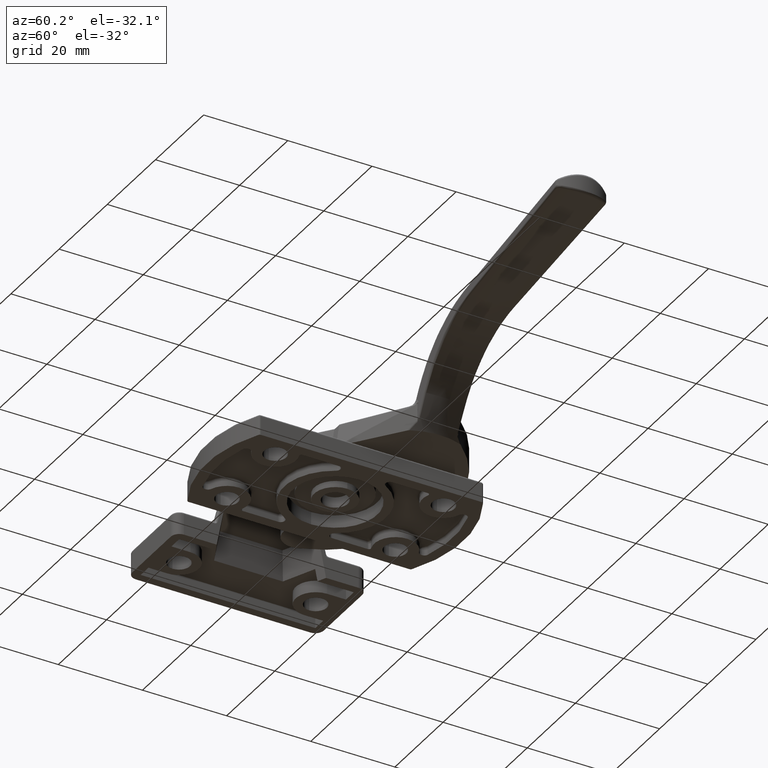
[diagram: clean part render]
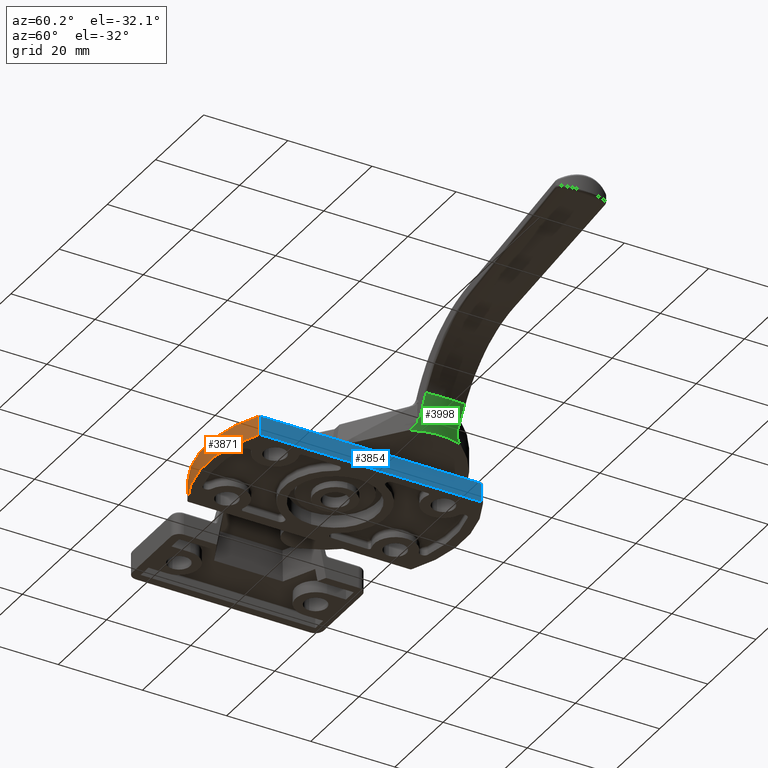
[diagram: same view with three faces highlighted in distinct colors, each labeled with its STEP entity id]
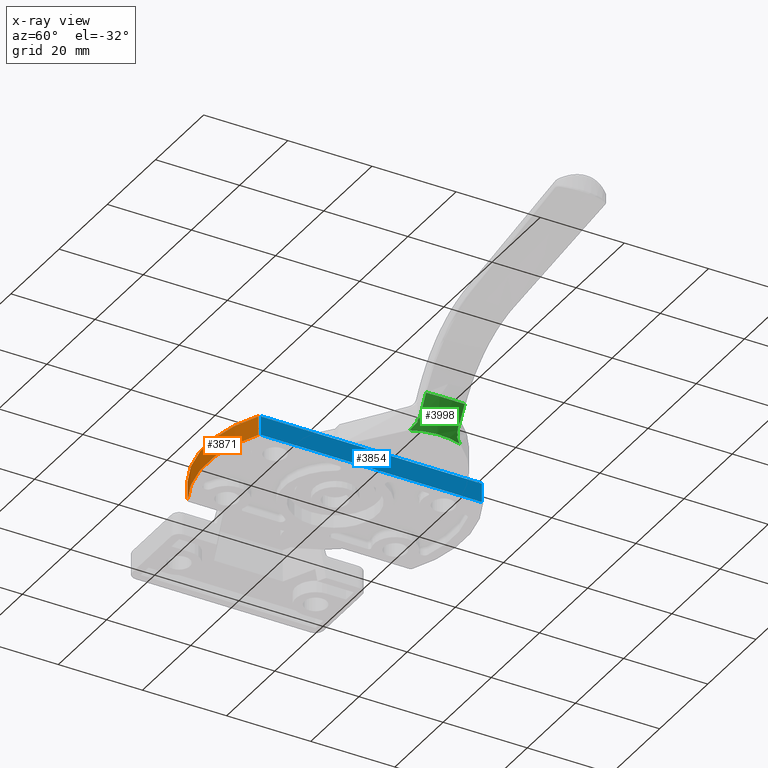
[diagram: x-ray of the same camera — body ghosted, the three highlighted faces saturated]
A machine part, auxiliary view with three faces highlighted in distinct colors.
The next image is the same camera in x-ray (body ghosted, the three faces saturated) — at least one of them is partly hidden behind the body in this view.
Their STEP definitions:

[orange] entity #3871 — the highlighted cylindrical surface (partial cylindrical patch) has radius 30.5 mm, axis along (0, 0, 1).
#299=LINE('',#6308,#488);
#302=LINE('',#6322,#491);
#488=VECTOR('',#4900,4.5);
#491=VECTOR('',#4915,4.5);
#662=CYLINDRICAL_SURFACE('',#4254,30.5);
#818=FACE_OUTER_BOUND('',#1103,.T.);
#1103=EDGE_LOOP('',(#2966,#2967,#2968,#2969));
#1391=CIRCLE('',#4212,30.5);
#1394=CIRCLE('',#4219,30.5);
#1740=VERTEX_POINT('',#6301);
#1742=VERTEX_POINT('',#6306);
#1743=VERTEX_POINT('',#6311);
#1746=VERTEX_POINT('',#6318);
#2167=EDGE_CURVE('',#1742,#1740,#299,.T.);
#2174=EDGE_CURVE('',#1743,#1746,#302,.T.);
#2177=EDGE_CURVE('',#1740,#1743,#1391,.T.);
#2183=EDGE_CURVE('',#1746,#1742,#1394,.T.);
#2966=ORIENTED_EDGE('',*,*,#2167,.F.);
#2967=ORIENTED_EDGE('',*,*,#2183,.F.);
#2968=ORIENTED_EDGE('',*,*,#2174,.F.);
#2969=ORIENTED_EDGE('',*,*,#2177,.F.);
#3871=ADVANCED_FACE('',(#818),#662,.T.);
#4212=AXIS2_PLACEMENT_3D('',#6327,#4922,#4923);
#4219=AXIS2_PLACEMENT_3D('',#6337,#4939,#4940);
#4254=AXIS2_PLACEMENT_3D('',#6392,#5010,#5011);
#4900=DIRECTION('',(0.,0.,1.));
#4915=DIRECTION('',(0.,0.,-1.));
#4922=DIRECTION('center_axis',(0.,0.,1.));
#4923=DIRECTION('ref_axis',(-2.18404529434457E-16,-1.,0.));
#4939=DIRECTION('center_axis',(0.,0.,-1.));
#4940=DIRECTION('ref_axis',(0.491803278688525,0.870706342615705,0.));
#5010=DIRECTION('center_axis',(0.,0.,1.));
#5011=DIRECTION('ref_axis',(0.491803278688525,0.870706342615705,0.));
#6301=CARTESIAN_POINT('',(-14.7416666666667,-26.7008101728934,4.5));
#6306=CARTESIAN_POINT('',(-14.7416666666667,-26.7008101728934,0.));
#6308=CARTESIAN_POINT('',(-14.7416666666667,-26.7008101728934,0.));
#6311=CARTESIAN_POINT('',(14.7416666666667,-26.7008101728934,4.5));
#6318=CARTESIAN_POINT('',(14.7416666666667,-26.7008101728934,0.));
#6322=CARTESIAN_POINT('',(14.7416666666667,-26.7008101728934,0.));
#6327=CARTESIAN_POINT('Origin',(0.,0.,4.5));
#6337=CARTESIAN_POINT('Origin',(0.,0.,0.));
#6392=CARTESIAN_POINT('Origin',(0.,0.,0.));

[blue] entity #3854 — the highlighted planar face has unit normal (1, 0, 0).
#172=PLANE('',#4217);
#298=LINE('',#6293,#487);
#301=LINE('',#6321,#490);
#303=LINE('',#6324,#492);
#307=LINE('',#6335,#496);
#487=VECTOR('',#4881,4.5);
#490=VECTOR('',#4914,4.5);
#492=VECTOR('',#4918,52.5261839466756);
#496=VECTOR('',#4936,52.5261839466756);
#801=FACE_OUTER_BOUND('',#1060,.T.);
#1060=EDGE_LOOP('',(#2880,#2881,#2882,#2883));
#1733=VERTEX_POINT('',#6282);
#1736=VERTEX_POINT('',#6289);
#1745=VERTEX_POINT('',#6314);
#1747=VERTEX_POINT('',#6319);
#2160=EDGE_CURVE('',#1733,#1736,#298,.T.);
#2173=EDGE_CURVE('',#1747,#1745,#301,.T.);
#2175=EDGE_CURVE('',#1745,#1733,#303,.T.);
#2182=EDGE_CURVE('',#1736,#1747,#307,.T.);
#2880=ORIENTED_EDGE('',*,*,#2160,.F.);
#2881=ORIENTED_EDGE('',*,*,#2175,.F.);
#2882=ORIENTED_EDGE('',*,*,#2173,.F.);
#2883=ORIENTED_EDGE('',*,*,#2182,.F.);
#3854=ADVANCED_FACE('',(#801),#172,.T.);
#4217=AXIS2_PLACEMENT_3D('',#6334,#4934,#4935);
#4881=DIRECTION('',(0.,0.,-1.));
#4914=DIRECTION('',(0.,0.,1.));
#4918=DIRECTION('',(-4.1806006369944E-17,1.,0.));
#4934=DIRECTION('center_axis',(1.,4.1806006369944E-17,0.));
#4935=DIRECTION('ref_axis',(0.,0.,-1.));
#4936=DIRECTION('',(4.1806006369944E-17,-1.,0.));
#6282=CARTESIAN_POINT('',(15.,26.2630919733378,4.5));
#6289=CARTESIAN_POINT('',(15.,26.2630919733378,0.));
#6293=CARTESIAN_POINT('',(15.,26.2630919733378,0.));
#6314=CARTESIAN_POINT('',(15.,-26.2630919733378,4.5));
#6319=CARTESIAN_POINT('',(15.,-26.2630919733378,0.));
#6321=CARTESIAN_POINT('',(15.,-26.2630919733378,0.));
#6324=CARTESIAN_POINT('',(15.,13.2782717248895,4.5));
#6334=CARTESIAN_POINT('Origin',(15.,26.556543449779,0.));
#6335=CARTESIAN_POINT('',(15.,26.556543449779,0.));

[green] entity #3998 — the highlighted face is a freeform B-spline surface patch.
#41=(
BOUNDED_SURFACE()
B_SPLINE_SURFACE(2,1,((#8703,#8704),(#8705,#8706),(#8707,#8708)),
 .UNSPECIFIED.,.F.,.F.,.F.)
B_SPLINE_SURFACE_WITH_KNOTS((3,3),(2,2),(1.10664772263179,1.93129483550432),
(0.,1.01079493438601),.UNSPECIFIED.)
GEOMETRIC_REPRESENTATION_ITEM()
RATIONAL_B_SPLINE_SURFACE(((1.,1.),(0.916192156653069,0.916192156653069),
(1.,1.)))
REPRESENTATION_ITEM('')
SURFACE()
);
#65=ELLIPSE('',#4430,0.168565452646934,0.115922717985064);
#66=ELLIPSE('',#4436,0.174236732845907,0.120910194625817);
#67=ELLIPSE('',#4451,14.429868953699,12.4966330871837);
#945=FACE_OUTER_BOUND('',#1251,.T.);
#1251=EDGE_LOOP('',(#3537,#3538,#3539,#3540,#3541,#3542,#3543,#3544,#3545,
#3546,#3547,#3548,#3549));
#1513=CIRCLE('',#4450,14.429868953699);
#1598=B_SPLINE_CURVE_WITH_KNOTS('',3,(#8003,#8004,#8005,#8006,#8007,#8008),
 .UNSPECIFIED.,.F.,.F.,(4,1,1,4),(-0.0884206123886146,-0.0631575802775818,
-0.0378945481665491,0.),.UNSPECIFIED.);
#1601=B_SPLINE_CURVE_WITH_KNOTS('',3,(#8073,#8074,#8075,#8076),
 .UNSPECIFIED.,.F.,.F.,(4,4),(0.400906716101898,0.897857371949299),
 .UNSPECIFIED.);
#1611=B_SPLINE_CURVE_WITH_KNOTS('',3,(#8344,#8345,#8346,#8347,#8348,#8349),
 .UNSPECIFIED.,.F.,.F.,(4,1,1,4),(0.,0.0553130471306566,0.0760554398046528,
0.096797832478649),.UNSPECIFIED.);
#1619=B_SPLINE_CURVE_WITH_KNOTS('',3,(#8503,#8504,#8505,#8506),
 .UNSPECIFIED.,.F.,.F.,(4,4),(7.15454716993361E-16,0.561813738344906),
 .UNSPECIFIED.);
#1630=B_SPLINE_CURVE_WITH_KNOTS('',3,(#8693,#8694,#8695,#8696,#8697,#8698,
#8699),.UNSPECIFIED.,.F.,.F.,(4,3,4),(-0.0605350507998294,-0.0302796084126874,
-9.99999999512774E-7),.UNSPECIFIED.);
#1631=B_SPLINE_CURVE_WITH_KNOTS('',3,(#8710,#8711,#8712,#8713),
 .UNSPECIFIED.,.F.,.F.,(4,4),(0.,0.0101772532062198),.UNSPECIFIED.);
#1632=B_SPLINE_CURVE_WITH_KNOTS('',3,(#8715,#8716,#8717,#8718),
 .UNSPECIFIED.,.F.,.F.,(4,4),(0.115344789403595,0.354453868151107),
 .UNSPECIFIED.);
#1633=B_SPLINE_CURVE_WITH_KNOTS('',3,(#8722,#8723,#8724,#8725),
 .UNSPECIFIED.,.F.,.F.,(4,4),(1.02326741884913,1.18140679418462),
 .UNSPECIFIED.);
#1634=B_SPLINE_CURVE_WITH_KNOTS('',3,(#8726,#8727,#8728,#8729,#8730,#8731,
#8732),.UNSPECIFIED.,.F.,.F.,(4,3,4),(1.0465042508061E-6,0.0109815540191698,
0.0519263233101543),.UNSPECIFIED.);
#1939=VERTEX_POINT('',#7905);
#1940=VERTEX_POINT('',#7914);
#1942=VERTEX_POINT('',#8000);
#1944=VERTEX_POINT('',#8072);
#1948=VERTEX_POINT('',#8175);
#1950=VERTEX_POINT('',#8193);
#1957=VERTEX_POINT('',#8342);
#1965=VERTEX_POINT('',#8501);
#1970=VERTEX_POINT('',#8686);
#1972=VERTEX_POINT('',#8709);
#1973=VERTEX_POINT('',#8714);
#1974=VERTEX_POINT('',#8719);
#1975=VERTEX_POINT('',#8721);
#2455=EDGE_CURVE('',#1939,#1940,#65,.T.);
#2461=EDGE_CURVE('',#1940,#1942,#1598,.T.);
#2464=EDGE_CURVE('',#1942,#1944,#1601,.T.);
#2473=EDGE_CURVE('',#1950,#1948,#66,.T.);
#2484=EDGE_CURVE('',#1957,#1950,#1611,.T.);
#2497=EDGE_CURVE('',#1965,#1957,#1619,.T.);
#2512=EDGE_CURVE('',#1970,#1939,#1630,.T.);
#2515=EDGE_CURVE('',#1970,#1972,#1631,.T.);
#2516=EDGE_CURVE('',#1973,#1972,#1632,.T.);
#2517=EDGE_CURVE('',#1974,#1973,#1513,.T.);
#2518=EDGE_CURVE('',#1975,#1974,#1633,.T.);
#2519=EDGE_CURVE('',#1948,#1975,#1634,.F.);
#2520=EDGE_CURVE('',#1944,#1965,#67,.T.);
#3537=ORIENTED_EDGE('',*,*,#2464,.F.);
#3538=ORIENTED_EDGE('',*,*,#2461,.F.);
#3539=ORIENTED_EDGE('',*,*,#2455,.F.);
#3540=ORIENTED_EDGE('',*,*,#2512,.F.);
#3541=ORIENTED_EDGE('',*,*,#2515,.T.);
#3542=ORIENTED_EDGE('',*,*,#2516,.F.);
#3543=ORIENTED_EDGE('',*,*,#2517,.F.);
#3544=ORIENTED_EDGE('',*,*,#2518,.F.);
#3545=ORIENTED_EDGE('',*,*,#2519,.F.);
#3546=ORIENTED_EDGE('',*,*,#2473,.F.);
#3547=ORIENTED_EDGE('',*,*,#2484,.F.);
#3548=ORIENTED_EDGE('',*,*,#2497,.F.);
#3549=ORIENTED_EDGE('',*,*,#2520,.F.);
#3998=ADVANCED_FACE('',(#945),#41,.T.);
#4430=AXIS2_PLACEMENT_3D('',#7915,#5454,#5455);
#4436=AXIS2_PLACEMENT_3D('',#8195,#5470,#5471);
#4450=AXIS2_PLACEMENT_3D('',#8720,#5503,#5504);
#4451=AXIS2_PLACEMENT_3D('',#8733,#5505,#5506);
#5454=DIRECTION('center_axis',(0.823172177657694,-0.335672103558687,-0.457943014820377));
#5455=DIRECTION('ref_axis',(0.344087032126788,0.936477493227988,-0.0679265706450942));
#5470=DIRECTION('center_axis',(0.845630602731899,0.251796550819388,-0.470645706151395));
#5471=DIRECTION('ref_axis',(-0.260850669998905,0.964225552701161,0.0471806261007999));
#5503=DIRECTION('center_axis',(0.,0.,-1.));
#5504=DIRECTION('ref_axis',(1.,-3.34630150467365E-16,0.));
#5505=DIRECTION('center_axis',(0.5,0.,0.866025403784439));
#5506=DIRECTION('ref_axis',(-3.34630150467365E-16,-1.,1.93198807451298E-16));
#7905=CARTESIAN_POINT('',(25.156041586106,5.20040983769227,2.13369885185551));
#7914=CARTESIAN_POINT('',(25.1626885490505,5.21769433309304,2.13297752200091));
#7915=CARTESIAN_POINT('Origin',(25.2088332743151,5.18981289630795,2.23636172699412));
#8000=CARTESIAN_POINT('',(25.6386991999649,5.53889436031929,2.73824753371614));
#8003=CARTESIAN_POINT('Ctrl Pts',(25.1626885490505,5.21769433309304,2.13297752200091));
#8004=CARTESIAN_POINT('Ctrl Pts',(25.1953853132763,5.29849284999348,2.13252529744831));
#8005=CARTESIAN_POINT('Ctrl Pts',(25.2957168412772,5.42468262420911,2.22001162950869));
#8006=CARTESIAN_POINT('Ctrl Pts',(25.4640669097454,5.52098496586331,2.44756630660793));
#8007=CARTESIAN_POINT('Ctrl Pts',(25.5759167135429,5.54019732920248,2.62864690369151));
#8008=CARTESIAN_POINT('Ctrl Pts',(25.6386991999649,5.53889436031929,2.73824753371614));
#8072=CARTESIAN_POINT('',(28.1086118470631,5.48763365681241,7.05021693474078));
#8073=CARTESIAN_POINT('Ctrl Pts',(25.6386991999649,5.53889436031929,2.73824753371614));
#8074=CARTESIAN_POINT('Ctrl Pts',(26.4620312968658,5.5218071730446,4.17555468229781));
#8075=CARTESIAN_POINT('Ctrl Pts',(27.2853355525988,5.50472027213463,5.61287779346533));
#8076=CARTESIAN_POINT('Ctrl Pts',(28.1086118470631,5.48763365681241,7.05021693474078));
#8175=CARTESIAN_POINT('',(25.1539276154424,14.7992806693168,1.31298630304603));
#8193=CARTESIAN_POINT('',(25.1574604534288,14.7867662428767,1.31263866681953));
#8195=CARTESIAN_POINT('Origin',(25.2104116138152,14.8086427816,1.41948243063174));
#8342=CARTESIAN_POINT('',(25.6491212494342,14.418218792008,1.98328098694101));
#8344=CARTESIAN_POINT('Ctrl Pts',(25.6491212494342,14.418218792008,1.98328098694101));
#8345=CARTESIAN_POINT('Ctrl Pts',(25.5573220064651,14.4163151099762,1.8233925265738));
#8346=CARTESIAN_POINT('Ctrl Pts',(25.4226639982519,14.4457333371041,1.60353408929103));
#8347=CARTESIAN_POINT('Ctrl Pts',(25.2460178038881,14.5980923394241,1.37070556421144));
#8348=CARTESIAN_POINT('Ctrl Pts',(25.1777217067418,14.7182100125067,1.31236502275026));
#8349=CARTESIAN_POINT('Ctrl Pts',(25.1574604534288,14.7867662428767,1.31263866681953));
#8501=CARTESIAN_POINT('',(28.4462344980887,14.4762245862914,6.85529040628665));
#8503=CARTESIAN_POINT('Ctrl Pts',(28.4462344980887,14.4762245862914,6.85529040628665));
#8504=CARTESIAN_POINT('Ctrl Pts',(27.513895816132,14.456889724185,5.2312686510179));
#8505=CARTESIAN_POINT('Ctrl Pts',(26.5815246975338,14.4375544600852,3.60726553122056));
#8506=CARTESIAN_POINT('Ctrl Pts',(25.6491212494342,14.418218792008,1.983280986941));
#8686=CARTESIAN_POINT('',(24.8962938961086,5.3206439002064,1.59963267920752));
#8693=CARTESIAN_POINT('Ctrl Pts',(24.8962938961086,5.32064390020636,1.59963267920751));
#8694=CARTESIAN_POINT('Ctrl Pts',(24.9336679965563,5.28761183218069,1.68719210226569));
#8695=CARTESIAN_POINT('Ctrl Pts',(24.9748998396867,5.26111767040755,1.77715146978521));
#8696=CARTESIAN_POINT('Ctrl Pts',(25.0181589391041,5.24118357696588,1.86609127259181));
#8697=CARTESIAN_POINT('Ctrl Pts',(25.0614511612037,5.22123422036223,1.95509917493956));
#8698=CARTESIAN_POINT('Ctrl Pts',(25.1078464038648,5.20736064372869,2.04529337742452));
#8699=CARTESIAN_POINT('Ctrl Pts',(25.1560415861041,5.20040983769253,2.13369885185213));
#8703=CARTESIAN_POINT('Ctrl Pts',(23.4733635426499,4.20800432223321,6.93889390390723E-16));
#8704=CARTESIAN_POINT('Ctrl Pts',(28.52733821458,4.20800432223321,8.75374091194908));
#8705=CARTESIAN_POINT('Ctrl Pts',(25.5924507358431,9.85183290527992,-1.22345556142639));
#8706=CARTESIAN_POINT('Ctrl Pts',(30.6464254077732,9.85183290527992,7.53028535052269));
#8707=CARTESIAN_POINT('Ctrl Pts',(23.9226887606609,15.7577058516763,-0.25941803557231));
#8708=CARTESIAN_POINT('Ctrl Pts',(28.976663432591,15.7577058516763,8.49432287637677));
#8709=CARTESIAN_POINT('',(24.8944179503652,5.32231435381864,1.59520724242174));
#8710=CARTESIAN_POINT('Ctrl Pts',(24.8962938961086,5.3206439002064,1.59963267920752));
#8711=CARTESIAN_POINT('Ctrl Pts',(24.8956665150334,5.32119839365285,1.59815753361226));
#8712=CARTESIAN_POINT('Ctrl Pts',(24.895040526792,5.32175446301966,1.596682388017));
#8713=CARTESIAN_POINT('Ctrl Pts',(24.8944159392837,5.3223121012897,1.59520724242174));
#8714=CARTESIAN_POINT('',(23.4733847061122,4.20802054577676,-1.19280701610559E-5));
#8715=CARTESIAN_POINT('Ctrl Pts',(23.4733847061122,4.20802054577676,-1.19280701610559E-5));
#8716=CARTESIAN_POINT('Ctrl Pts',(23.9606925025554,4.58988144622857,0.512782355259405));
#8717=CARTESIAN_POINT('Ctrl Pts',(24.433440392289,4.96060763153262,1.04648785041407));
#8718=CARTESIAN_POINT('Ctrl Pts',(24.8944222839328,5.32231725132425,1.59520169171088));
#8719=CARTESIAN_POINT('',(24.0724661648897,15.7577022898183,-4.76999372154647E-7));
#8720=CARTESIAN_POINT('Origin',(10.570131046301,10.6677031670782,0.));
#8721=CARTESIAN_POINT('',(24.9205320207059,14.6994550511795,0.857742376154971));
#8722=CARTESIAN_POINT('Ctrl Pts',(24.9205321241433,14.6994547294946,0.857741984468182));
#8723=CARTESIAN_POINT('Ctrl Pts',(24.6481775698034,15.0546969335558,0.565053167145603));
#8724=CARTESIAN_POINT('Ctrl Pts',(24.3655260421601,15.4076988688576,0.279058145050405));
#8725=CARTESIAN_POINT('Ctrl Pts',(24.0724664636567,15.7577018515163,-1.34048378963567E-6));
#8726=CARTESIAN_POINT('Ctrl Pts',(24.9205318686594,14.6994549865279,0.857742471404514));
#8727=CARTESIAN_POINT('Ctrl Pts',(24.9353329750697,14.7109616608142,0.889178258671625));
#8728=CARTESIAN_POINT('Ctrl Pts',(24.9505627983935,14.7214661787684,0.920878208324958));
#8729=CARTESIAN_POINT('Ctrl Pts',(24.9660977652803,14.7309893820598,0.952626144495423));
#8730=CARTESIAN_POINT('Ctrl Pts',(25.0240254734719,14.7665000687149,1.07100973652871));
#8731=CARTESIAN_POINT('Ctrl Pts',(25.0879821960311,14.7894820619199,1.19369379971365));
#8732=CARTESIAN_POINT('Ctrl Pts',(25.1539276154398,14.7992806693165,1.31298630304145));
#8733=CARTESIAN_POINT('Origin',(18.0075847303299,10.6677031670782,12.8820476596784));